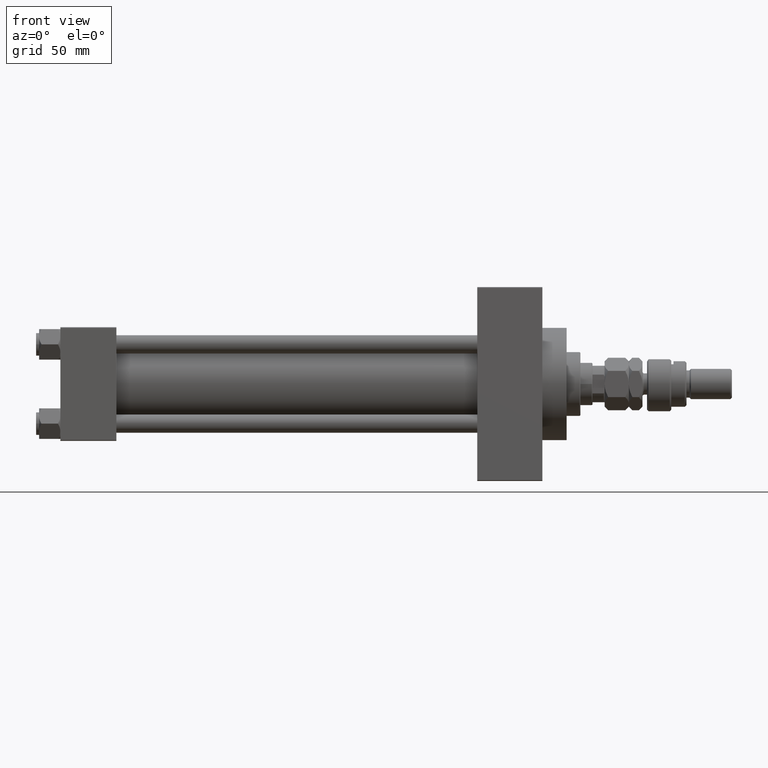
[diagram: clean part render]
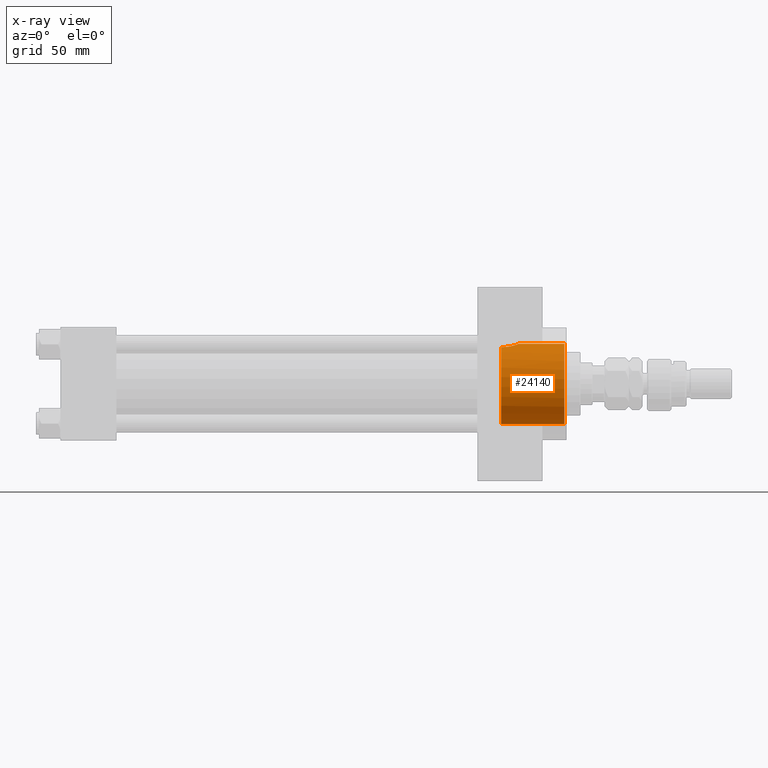
[diagram: x-ray — body ghosted, one internal face saturated and labeled with its STEP entity id]
A machine part, front view, then the same camera in x-ray: the body is ghosted and one INTERNAL B-rep face — a face not visible from any outside direction — is saturated and labeled: STEP entity #24140.
In plain terms, the highlighted cylindrical surface (partial cylindrical patch) has radius 26.5 mm, axis along (1, 0, 0).
Its self-contained STEP definition (entity closure, byte-faithful):
#1104 = ORIENTED_EDGE ( 'NONE', *, *, #7262, .T. ) ;
#2669 = EDGE_CURVE ( 'NONE', #7435, #27543, #18076, .T. ) ;
#3273 = LINE ( 'NONE', #14957, #25446 ) ;
#3789 = VERTEX_POINT ( 'NONE', #47767 ) ;
#4952 = DIRECTION ( 'NONE',  ( 1.000000000000000000, 0.000000000000000000, 0.000000000000000000 ) ) ;
#5475 = CARTESIAN_POINT ( 'NONE',  ( 298.6874981071936190, -8.077221093107597838, 25.24030799844106099 ) ) ;
#5731 = CARTESIAN_POINT ( 'NONE',  ( 297.4947120380321621, -8.931495953537172738, 24.95025484238638569 ) ) ;
#6242 = CARTESIAN_POINT ( 'NONE',  ( 291.4868983507926714, -10.49443499905853372, 24.33364968799253347 ) ) ;
#6986 = CARTESIAN_POINT ( 'NONE',  ( 290.7399999999999523, -10.40398000767013542, 24.37226292324945831 ) ) ;
#7090 = CYLINDRICAL_SURFACE ( 'NONE', #25905, 26.50000000000000355 ) ;
#7262 = EDGE_CURVE ( 'NONE', #24356, #7435, #3273, .T. ) ;
#7299 = ORIENTED_EDGE ( 'NONE', *, *, #35465, .F. ) ;
#7337 = CARTESIAN_POINT ( 'NONE',  ( 290.7399999999999523, 0.000000000000000000, 0.000000000000000000 ) ) ;
#7435 = VERTEX_POINT ( 'NONE', #40080 ) ;
#7588 = DIRECTION ( 'NONE',  ( 0.000000000000000000, 0.000000000000000000, -1.000000000000000000 ) ) ;
#8522 = CARTESIAN_POINT ( 'NONE',  ( 290.7399999999999523, 0.000000000000000000, 0.000000000000000000 ) ) ;
#8540 = CARTESIAN_POINT ( 'NONE',  ( 302.0665133812162821, -2.938253791439191964, 26.33899517628734088 ) ) ;
#9032 = CARTESIAN_POINT ( 'NONE',  ( 300.6508763872860186, -5.926808359427496953, 25.83050513016100069 ) ) ;
#9275 = CARTESIAN_POINT ( 'NONE',  ( 302.4800000000001319, 1.369086566889278633E-14, 26.50000000000006750 ) ) ;
#10687 = DIRECTION ( 'NONE',  ( 0.000000000000000000, 0.000000000000000000, -1.000000000000000000 ) ) ;
#10706 = CARTESIAN_POINT ( 'NONE',  ( 290.7399999999999523, 0.000000000000000000, -26.50000000000000355 ) ) ;
#11140 = DIRECTION ( 'NONE',  ( 1.000000000000000000, -0.000000000000000000, -0.000000000000000000 ) ) ;
#12590 = CARTESIAN_POINT ( 'NONE',  ( 302.4799999999999613, -0.7466733969459847797, 26.50000000000001776 ) ) ;
#12845 = CARTESIAN_POINT ( 'NONE',  ( 299.5076201536011240, -7.348534936426574404, 25.46581292754182968 ) ) ;
#12909 = EDGE_LOOP ( 'NONE', ( #31839, #1104, #49215, #7299, #40746 ) ) ;
#14103 = CARTESIAN_POINT ( 'NONE',  ( 292.2451057705675339, -10.50334255171940434, 24.32972513250578217 ) ) ;
#14435 = AXIS2_PLACEMENT_3D ( 'NONE', #8522, #4952, #28843 ) ;
#14600 = CARTESIAN_POINT ( 'NONE',  ( 295.5115735695663943, -9.881194972351266870, 24.58915736193082324 ) ) ;
#14957 = CARTESIAN_POINT ( 'NONE',  ( 290.7399999999999523, 3.245314017740486554E-15, 26.50000000000000355 ) ) ;
#15205 = DIRECTION ( 'NONE',  ( 1.000000000000000000, -0.000000000000000000, -0.000000000000000000 ) ) ;
#16818 = CARTESIAN_POINT ( 'NONE',  ( 290.7399999999999523, -10.40398000767013542, 24.37226292324945831 ) ) ;
#17170 = EDGE_CURVE ( 'NONE', #48761, #3789, #36354, .T. ) ;
#17408 = CARTESIAN_POINT ( 'NONE',  ( 294.4459359432478323, -10.21777125531390773, 24.45211332338677579 ) ) ;
#18076 = CIRCLE ( 'NONE', #19680, 26.50000000000000355 ) ;
#18692 = B_SPLINE_CURVE_WITH_KNOTS ( 'NONE', 3,
 ( #9275, #12590, #24793, #40286, #8540, #25045, #40547, #24048, #28360, #43848, #9032, #20214, #12845, #5475, #48172, #28860, #5731, #35737, #48933, #33193, #14600, #17408, #48423, #14103, #6242, #6986 ),
 .UNSPECIFIED., .F., .F.,
 ( 4, 2, 2, 2, 2, 2, 2, 2, 2, 2, 2, 2, 4 ),
 ( 0.01781170071191076620, 0.02003745927526340981, 0.02115033855693971079, 0.02226321783861601525, 0.02337609712029231623, 0.02448897640196862069, 0.02671473496532131980, 0.02782761424699772834, 0.02894049352867413688, 0.03005337281035054542, 0.03116625209202695396, 0.03339201065537961144, 0.03561776921873227586 ),
 .UNSPECIFIED. ) ;
#19680 = AXIS2_PLACEMENT_3D ( 'NONE', #48570, #45520, #10687 ) ;
#20214 = CARTESIAN_POINT ( 'NONE',  ( 299.9981355541606263, -6.811571481472472378, 25.61680511670813942 ) ) ;
#24048 = CARTESIAN_POINT ( 'NONE',  ( 301.3963988635402984, -4.655434592126336035, 26.09007526830299284 ) ) ;
#24140 = ADVANCED_FACE ( 'NONE', ( #34290 ), #7090, .F. ) ;
#24356 = VERTEX_POINT ( 'NONE', #28903 ) ;
#24793 = CARTESIAN_POINT ( 'NONE',  ( 302.4011065554138327, -1.483758503940585394, 26.46850309434598714 ) ) ;
#25045 = CARTESIAN_POINT ( 'NONE',  ( 301.8335546017132174, -3.642695553053319824, 26.25084325021121501 ) ) ;
#25446 = VECTOR ( 'NONE', #15205, 1000.000000000000000 ) ;
#25905 = AXIS2_PLACEMENT_3D ( 'NONE', #7337, #11140, #7588 ) ;
#27543 = VERTEX_POINT ( 'NONE', #37082 ) ;
#28360 = CARTESIAN_POINT ( 'NONE',  ( 301.2276638786152034, -4.981583166679977026, 26.02957788900645397 ) ) ;
#28843 = DIRECTION ( 'NONE',  ( 0.000000000000000000, 0.000000000000000000, -1.000000000000000000 ) ) ;
#28860 = CARTESIAN_POINT ( 'NONE',  ( 297.8022832347252233, -8.734885810677026186, 25.02004257437571866 ) ) ;
#28903 = CARTESIAN_POINT ( 'NONE',  ( 302.4800000000001319, 1.369086566889278633E-14, 26.50000000000006750 ) ) ;
#30907 = EDGE_CURVE ( 'NONE', #24356, #48761, #18692, .T. ) ;
#31839 = ORIENTED_EDGE ( 'NONE', *, *, #30907, .F. ) ;
#33193 = CARTESIAN_POINT ( 'NONE',  ( 295.8600678267363264, -9.750145953289933942, 24.64162310621548357 ) ) ;
#34290 = FACE_OUTER_BOUND ( 'NONE', #12909, .T. ) ;
#35465 = EDGE_CURVE ( 'NONE', #3789, #27543, #45792, .T. ) ;
#35737 = CARTESIAN_POINT ( 'NONE',  ( 296.8603660912149280, -9.291949300782571086, 24.81826977973610582 ) ) ;
#35853 = VECTOR ( 'NONE', #50102, 1000.000000000000000 ) ;
#36354 = CIRCLE ( 'NONE', #14435, 26.50000000000000355 ) ;
#37082 = CARTESIAN_POINT ( 'NONE',  ( 332.4999999999999432, 0.000000000000000000, -26.50000000000000355 ) ) ;
#40080 = CARTESIAN_POINT ( 'NONE',  ( 332.4999999999999432, 3.245314017740486554E-15, 26.50000000000000355 ) ) ;
#40286 = CARTESIAN_POINT ( 'NONE',  ( 302.1654842721632690, -2.575241489874374512, 26.37710048711162969 ) ) ;
#40547 = CARTESIAN_POINT ( 'NONE',  ( 301.6993435614955956, -3.985990130492278460, 26.20070574291653998 ) ) ;
#40746 = ORIENTED_EDGE ( 'NONE', *, *, #17170, .F. ) ;
#43848 = CARTESIAN_POINT ( 'NONE',  ( 300.8553297434206115, -5.616857363200519870, 25.89992295911057241 ) ) ;
#45520 = DIRECTION ( 'NONE',  ( 1.000000000000000000, 0.000000000000000000, 0.000000000000000000 ) ) ;
#45792 = LINE ( 'NONE', #10706, #35853 ) ;
#47767 = CARTESIAN_POINT ( 'NONE',  ( 290.7399999999999523, 0.000000000000000000, -26.50000000000000355 ) ) ;
#48172 = CARTESIAN_POINT ( 'NONE',  ( 298.3983008714430412, -8.308216825530779559, 25.16494175890554530 ) ) ;
#48423 = CARTESIAN_POINT ( 'NONE',  ( 293.7216423275558554, -10.36418010715238402, 24.38933169417624924 ) ) ;
#48570 = CARTESIAN_POINT ( 'NONE',  ( 332.4999999999999432, 0.000000000000000000, 0.000000000000000000 ) ) ;
#48761 = VERTEX_POINT ( 'NONE', #16818 ) ;
#48933 = CARTESIAN_POINT ( 'NONE',  ( 296.5335921408432114, -9.455792512420352125, 24.75606841526505519 ) ) ;
#49215 = ORIENTED_EDGE ( 'NONE', *, *, #2669, .T. ) ;
#50102 = DIRECTION ( 'NONE',  ( 1.000000000000000000, -0.000000000000000000, -0.000000000000000000 ) ) ;